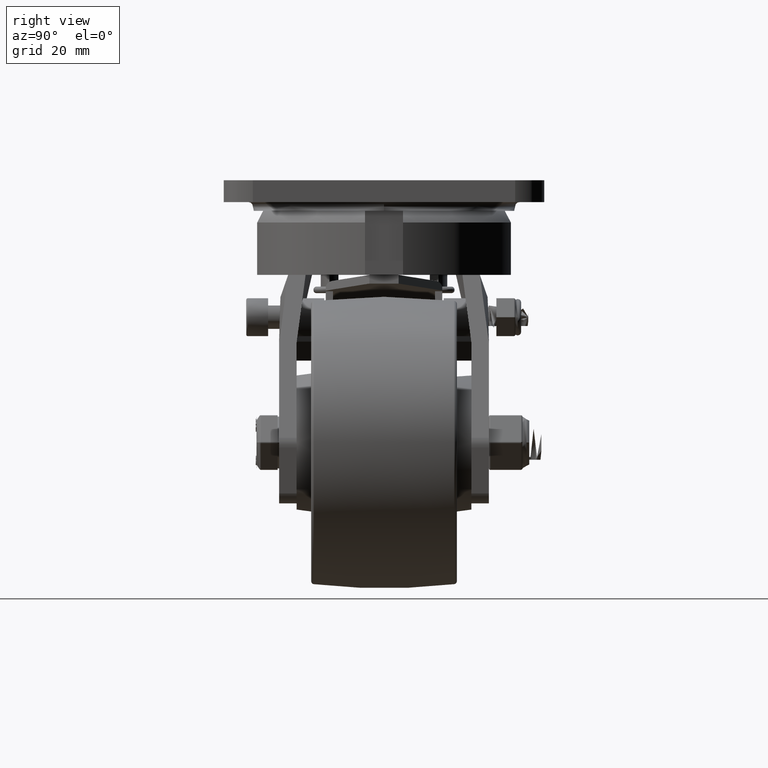
[diagram: clean part render]
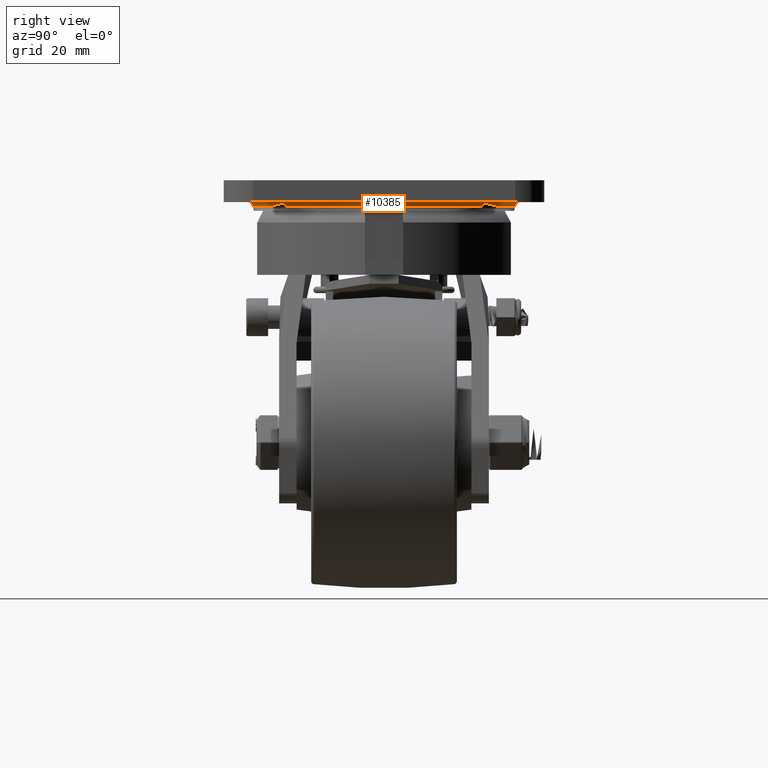
[diagram: same view with one face highlighted and labeled with its STEP entity id]
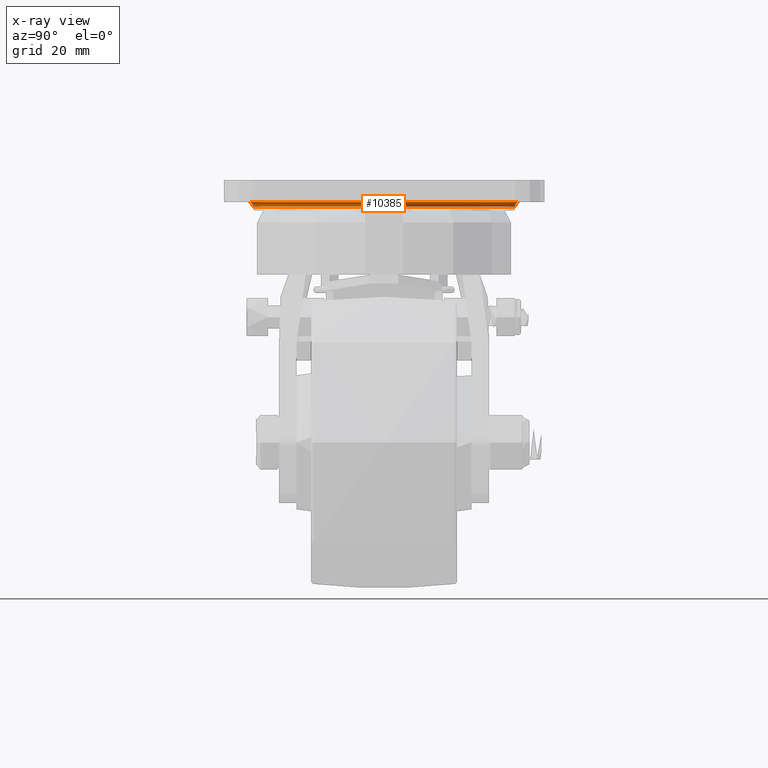
[diagram: x-ray of the same camera — body ghosted, the highlighted face saturated]
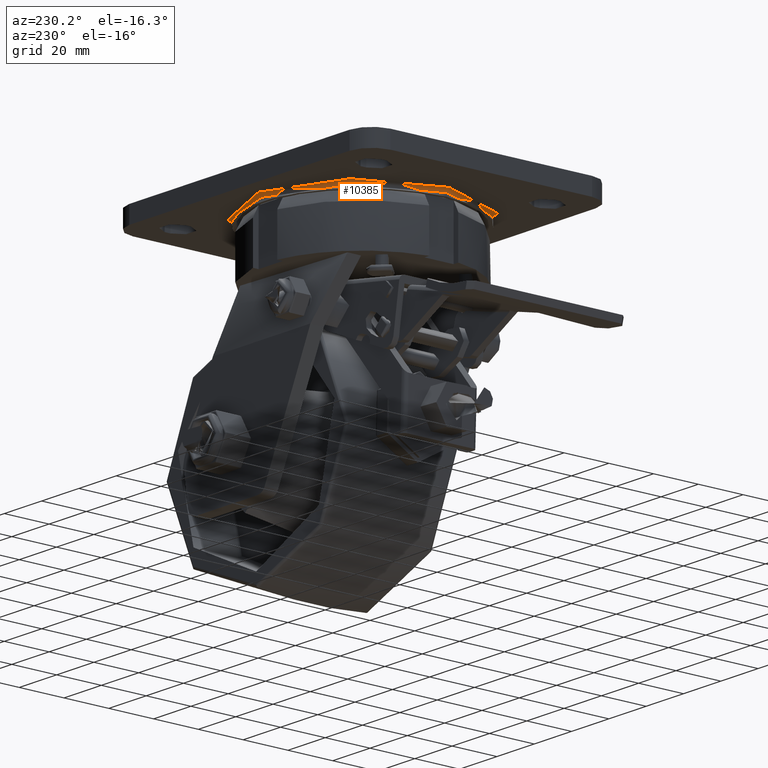
[diagram: same view with one face highlighted and labeled with its STEP entity id]
A machine part, right view. The second image highlights one B-rep face of the part: STEP entity #10385.
The next image is the same camera in x-ray: the body ghosted, the highlighted face saturated — about 0% of this face is hidden behind the body in this view.
A second angle (auxiliary view) of the same face is appended — the face is thin or edge-on in the first view.
In plain terms, the highlighted toroidal blend (fillet) surface has major radius 46.5 mm and minor (blend) radius 1.5 mm.
Its self-contained STEP definition (entity closure, byte-faithful):
#1250=TOROIDAL_SURFACE('',#11349,46.5,1.5);
#1322=FACE_OUTER_BOUND('',#1967,.T.);
#1967=EDGE_LOOP('',(#7479,#7480,#7481,#7482));
#4317=CIRCLE('',#11348,45.);
#4318=CIRCLE('',#11350,1.5);
#4319=CIRCLE('',#11351,46.5);
#4772=VERTEX_POINT('',#16052);
#4773=VERTEX_POINT('',#16056);
#5817=EDGE_CURVE('',#4772,#4772,#4317,.T.);
#5818=EDGE_CURVE('',#4772,#4773,#4318,.T.);
#5819=EDGE_CURVE('',#4773,#4773,#4319,.T.);
#7479=ORIENTED_EDGE('',*,*,#5817,.T.);
#7480=ORIENTED_EDGE('',*,*,#5818,.T.);
#7481=ORIENTED_EDGE('',*,*,#5819,.T.);
#7482=ORIENTED_EDGE('',*,*,#5818,.F.);
#10385=ADVANCED_FACE('',(#1322),#1250,.F.);
#11348=AXIS2_PLACEMENT_3D('',#16054,#12615,#12616);
#11349=AXIS2_PLACEMENT_3D('',#16055,#12617,#12618);
#11350=AXIS2_PLACEMENT_3D('',#16057,#12619,#12620);
#11351=AXIS2_PLACEMENT_3D('',#16058,#12621,#12622);
#12615=DIRECTION('center_axis',(0.,0.,1.));
#12616=DIRECTION('ref_axis',(1.,1.22464679914735E-16,0.));
#12617=DIRECTION('center_axis',(0.,0.,-1.));
#12618=DIRECTION('ref_axis',(-1.,0.,0.));
#12619=DIRECTION('center_axis',(1.22464679914735E-16,1.,0.));
#12620=DIRECTION('ref_axis',(1.,-1.22464679914735E-16,0.));
#12621=DIRECTION('center_axis',(0.,0.,-1.));
#12622=DIRECTION('ref_axis',(1.,1.22464679914735E-16,0.));
#16052=CARTESIAN_POINT('',(45.,5.51091059616309E-15,-9.));
#16054=CARTESIAN_POINT('Origin',(0.,0.,-9.));
#16055=CARTESIAN_POINT('Origin',(0.,0.,-9.));
#16056=CARTESIAN_POINT('',(46.5,-5.69460761603519E-15,-7.5));
#16057=CARTESIAN_POINT('Origin',(46.5,-5.69460761603519E-15,-9.));
#16058=CARTESIAN_POINT('Origin',(0.,0.,-7.5));